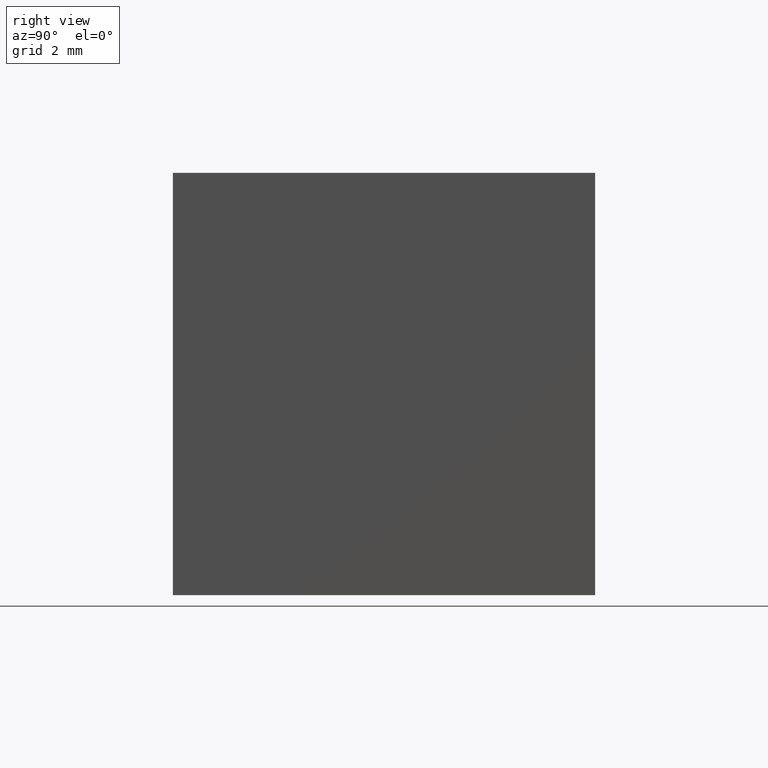
[diagram: clean part render]
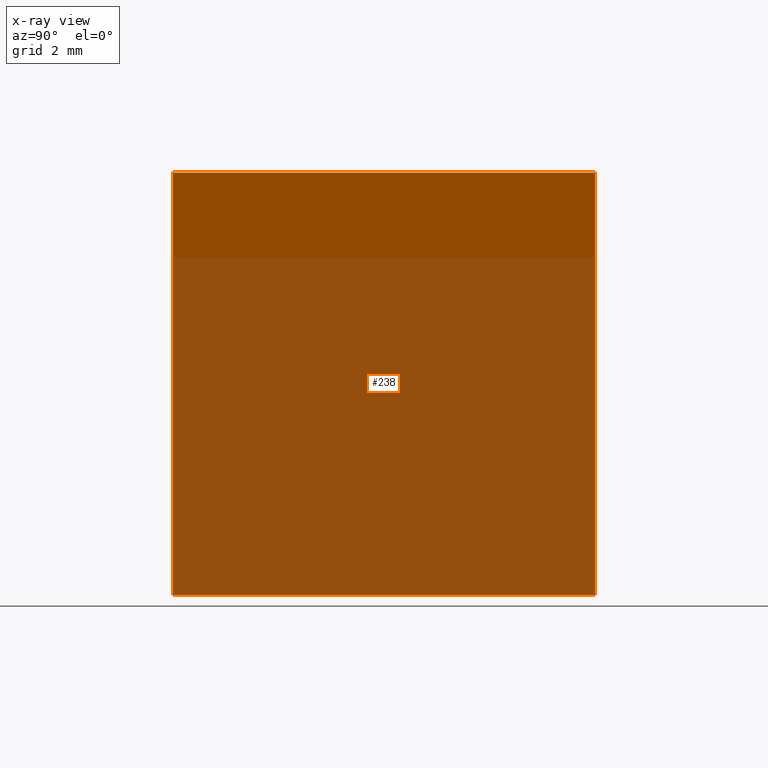
[diagram: x-ray — body ghosted, one internal face saturated and labeled with its STEP entity id]
A machine part, right view, then the same camera in x-ray: the body is ghosted and one INTERNAL B-rep face — a face not visible from any outside direction — is saturated and labeled: STEP entity #238.
In plain terms, the highlighted planar face has unit normal (0.7071, 0, -0.7071).
Its self-contained STEP definition (entity closure, byte-faithful):
#1 = EDGE_CURVE ( 'NONE', #102, #84, #64, .T. ) ;
#4 = VERTEX_POINT ( 'NONE', #5 ) ;
#5 = CARTESIAN_POINT ( 'NONE',  ( 0.0000000000000000000, 0.0000000000000000000, 0.0000000000000000000 ) ) ;
#23 = FACE_OUTER_BOUND ( 'NONE', #26, .T. ) ;
#24 = DIRECTION ( 'NONE',  ( -0.7071067811865476800, 0.0000000000000000000, -0.7071067811865474600 ) ) ;
#26 = EDGE_LOOP ( 'NONE', ( #155, #175, #69, #78 ) ) ;
#35 = CARTESIAN_POINT ( 'NONE',  ( -10.00000000000000000, 0.0000000000000000000, -9.999999999999996400 ) ) ;
#44 = DIRECTION ( 'NONE',  ( -0.0000000000000000000, -1.000000000000000000, -0.0000000000000000000 ) ) ;
#64 = LINE ( 'NONE', #259, #136 ) ;
#66 = CARTESIAN_POINT ( 'NONE',  ( -10.00000000000000000, 10.00000000000000000, -9.999999999999996400 ) ) ;
#69 = ORIENTED_EDGE ( 'NONE', *, *, #286, .F. ) ;
#72 = CARTESIAN_POINT ( 'NONE',  ( -10.00000000000000000, 10.00000000000000000, -9.999999999999996400 ) ) ;
#78 = ORIENTED_EDGE ( 'NONE', *, *, #1, .T. ) ;
#81 = VECTOR ( 'NONE', #44, 1000.000000000000000 ) ;
#84 = VERTEX_POINT ( 'NONE', #35 ) ;
#102 = VERTEX_POINT ( 'NONE', #72 ) ;
#108 = CARTESIAN_POINT ( 'NONE',  ( -10.00000000000000000, 10.00000000000000000, -9.999999999999996400 ) ) ;
#129 = CARTESIAN_POINT ( 'NONE',  ( 0.0000000000000000000, 10.00000000000000000, 0.0000000000000000000 ) ) ;
#130 = LINE ( 'NONE', #108, #143 ) ;
#135 = DIRECTION ( 'NONE',  ( -0.0000000000000000000, -1.000000000000000000, -0.0000000000000000000 ) ) ;
#136 = VECTOR ( 'NONE', #135, 1000.000000000000000 ) ;
#141 = AXIS2_PLACEMENT_3D ( 'NONE', #66, #164, #24 ) ;
#142 = LINE ( 'NONE', #129, #81 ) ;
#143 = VECTOR ( 'NONE', #231, 1000.000000000000000 ) ;
#154 = VECTOR ( 'NONE', #187, 1000.000000000000000 ) ;
#155 = ORIENTED_EDGE ( 'NONE', *, *, #256, .T. ) ;
#163 = LINE ( 'NONE', #255, #154 ) ;
#164 = DIRECTION ( 'NONE',  ( 0.7071067811865474600, 0.0000000000000000000, -0.7071067811865476800 ) ) ;
#175 = ORIENTED_EDGE ( 'NONE', *, *, #232, .F. ) ;
#187 = DIRECTION ( 'NONE',  ( 0.7071067811865476800, 0.0000000000000000000, 0.7071067811865474600 ) ) ;
#199 = VERTEX_POINT ( 'NONE', #223 ) ;
#223 = CARTESIAN_POINT ( 'NONE',  ( 0.0000000000000000000, 10.00000000000000000, 0.0000000000000000000 ) ) ;
#231 = DIRECTION ( 'NONE',  ( 0.7071067811865476800, 0.0000000000000000000, 0.7071067811865474600 ) ) ;
#232 = EDGE_CURVE ( 'NONE', #199, #4, #142, .T. ) ;
#238 = ADVANCED_FACE ( 'NONE', ( #23 ), #291, .F. ) ;
#255 = CARTESIAN_POINT ( 'NONE',  ( -10.00000000000000000, 0.0000000000000000000, -9.999999999999996400 ) ) ;
#256 = EDGE_CURVE ( 'NONE', #84, #4, #163, .T. ) ;
#259 = CARTESIAN_POINT ( 'NONE',  ( -10.00000000000000000, 10.00000000000000000, -9.999999999999996400 ) ) ;
#286 = EDGE_CURVE ( 'NONE', #102, #199, #130, .T. ) ;
#291 = PLANE ( 'NONE',  #141 ) ;